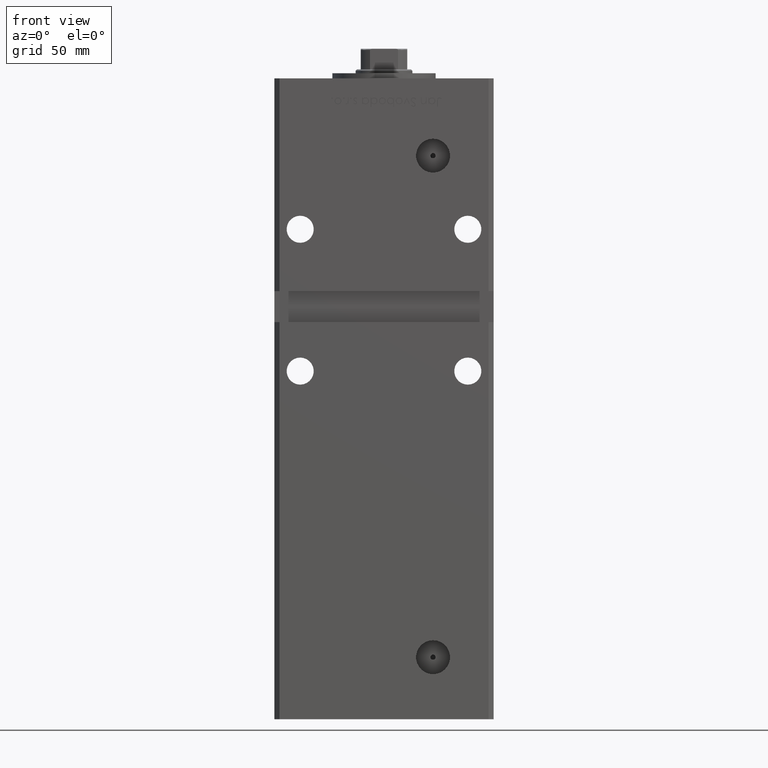
[diagram: clean part render]
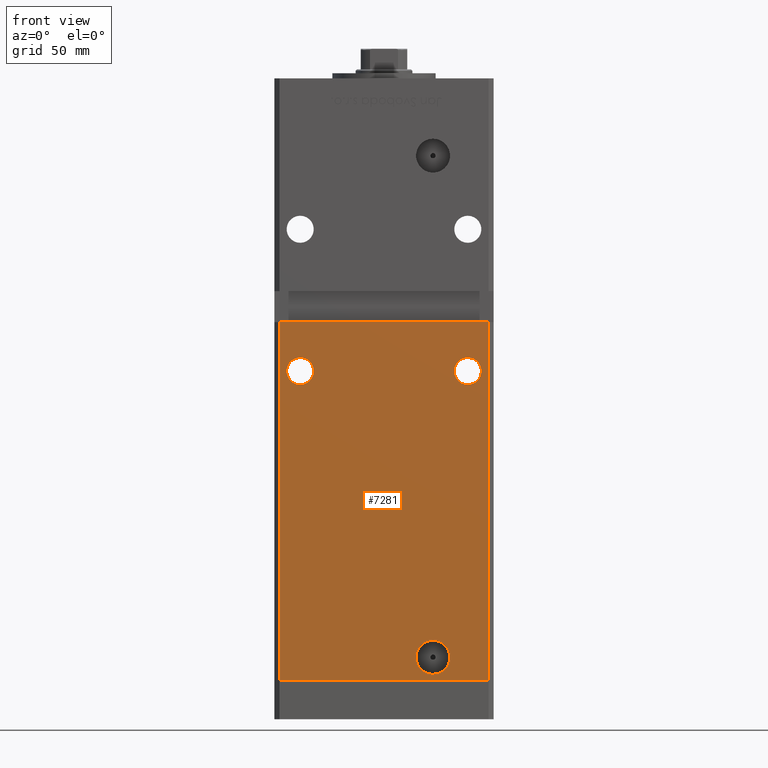
[diagram: same view with one face highlighted and labeled with its STEP entity id]
A machine part, front view. The second image highlights one B-rep face of the part: STEP entity #7281.
In plain terms, the highlighted planar face has unit normal (0, 1, 0).
Its self-contained STEP definition (entity closure, byte-faithful):
#118 = CIRCLE ( 'NONE', #1816, 5.250000000000004441 ) ;
#138 = DIRECTION ( 'NONE',  ( 0.000000000000000000, 1.000000000000000000, 0.000000000000000000 ) ) ;
#1005 = EDGE_CURVE ( 'NONE', #37546, #22924, #8713, .T. ) ;
#1575 = FACE_BOUND ( 'NONE', #26703, .T. ) ;
#1689 = CARTESIAN_POINT ( 'NONE',  ( 32.50000000000000000, -37.50000000000000711, 120.0000000000000284 ) ) ;
#1816 = AXIS2_PLACEMENT_3D ( 'NONE', #51570, #39739, #47282 ) ;
#2638 = EDGE_CURVE ( 'NONE', #22547, #33674, #30963, .T. ) ;
#2845 = ORIENTED_EDGE ( 'NONE', *, *, #41509, .T. ) ;
#4046 = EDGE_LOOP ( 'NONE', ( #31133, #35742, #12644, #27502 ) ) ;
#4178 = CARTESIAN_POINT ( 'NONE',  ( -32.50000000000000000, -37.50000000000000711, 120.0000000000000284 ) ) ;
#4843 = EDGE_CURVE ( 'NONE', #37546, #15901, #38566, .T. ) ;
#5079 = DIRECTION ( 'NONE',  ( 0.000000000000000000, 1.000000000000000000, 0.000000000000000000 ) ) ;
#6186 = CIRCLE ( 'NONE', #8765, 5.250000000000004441 ) ;
#7281 = ADVANCED_FACE ( 'NONE', ( #38442, #1575, #17217, #38182 ), #29829, .F. ) ;
#7476 = CARTESIAN_POINT ( 'NONE',  ( 32.50000000000000000, -37.50000000000000711, 114.7500000000000284 ) ) ;
#7487 = VERTEX_POINT ( 'NONE', #11504 ) ;
#7650 = CIRCLE ( 'NONE', #15373, 5.250000000000004441 ) ;
#8713 = LINE ( 'NONE', #20043, #42049 ) ;
#8739 = CARTESIAN_POINT ( 'NONE',  ( 40.49999999999998579, -37.50000000000000711, 139.0000000000000284 ) ) ;
#8765 = AXIS2_PLACEMENT_3D ( 'NONE', #46626, #50921, #38299 ) ;
#10312 = CARTESIAN_POINT ( 'NONE',  ( -42.49999999999998579, -37.50000000000000711, 139.0000000000000284 ) ) ;
#10641 = AXIS2_PLACEMENT_3D ( 'NONE', #4178, #138, #49362 ) ;
#11453 = LINE ( 'NONE', #27856, #20465 ) ;
#11483 = CIRCLE ( 'NONE', #10641, 5.250000000000004441 ) ;
#11504 = CARTESIAN_POINT ( 'NONE',  ( 32.50000000000000000, -37.50000000000000711, 125.2500000000000284 ) ) ;
#12286 = ORIENTED_EDGE ( 'NONE', *, *, #47349, .T. ) ;
#12462 = EDGE_CURVE ( 'NONE', #44953, #32972, #11483, .T. ) ;
#12644 = ORIENTED_EDGE ( 'NONE', *, *, #1005, .T. ) ;
#13535 = DIRECTION ( 'NONE',  ( 0.000000000000000000, 0.000000000000000000, 1.000000000000000000 ) ) ;
#14713 = VECTOR ( 'NONE', #39348, 1000.000000000000000 ) ;
#15373 = AXIS2_PLACEMENT_3D ( 'NONE', #1689, #31010, #13535 ) ;
#15611 = CARTESIAN_POINT ( 'NONE',  ( 18.99999999999998934, -37.50000000000000711, 2.420000000000009699 ) ) ;
#15901 = VERTEX_POINT ( 'NONE', #8739 ) ;
#16001 = DIRECTION ( 'NONE',  ( -0.000000000000000000, -0.000000000000000000, -1.000000000000000000 ) ) ;
#16102 = CARTESIAN_POINT ( 'NONE',  ( -32.50000000000000000, -37.50000000000000711, 114.7500000000000142 ) ) ;
#17217 = FACE_BOUND ( 'NONE', #51950, .T. ) ;
#17546 = ORIENTED_EDGE ( 'NONE', *, *, #46370, .F. ) ;
#18285 = DIRECTION ( 'NONE',  ( 0.000000000000000000, -0.000000000000000000, 1.000000000000000000 ) ) ;
#18552 = CARTESIAN_POINT ( 'NONE',  ( 18.99999999999998934, -37.50000000000000711, 9.000000000000007105 ) ) ;
#20043 = CARTESIAN_POINT ( 'NONE',  ( -40.49999999999998579, -37.50000000000000711, 218.5000000000000000 ) ) ;
#20465 = VECTOR ( 'NONE', #40231, 1000.000000000000000 ) ;
#21976 = CARTESIAN_POINT ( 'NONE',  ( -40.49999999999998579, -37.50000000000000711, 0.000000000000000000 ) ) ;
#22135 = CARTESIAN_POINT ( 'NONE',  ( 18.99999999999998934, -37.50000000000000711, 15.58000000000000718 ) ) ;
#22224 = CARTESIAN_POINT ( 'NONE',  ( -40.49999999999998579, -37.50000000000000711, 0.000000000000000000 ) ) ;
#22410 = AXIS2_PLACEMENT_3D ( 'NONE', #18552, #26077, #43013 ) ;
#22547 = VERTEX_POINT ( 'NONE', #15611 ) ;
#22924 = VERTEX_POINT ( 'NONE', #22224 ) ;
#26077 = DIRECTION ( 'NONE',  ( 0.000000000000000000, -1.000000000000000000, 0.000000000000000000 ) ) ;
#26703 = EDGE_LOOP ( 'NONE', ( #12286, #41645 ) ) ;
#27502 = ORIENTED_EDGE ( 'NONE', *, *, #31554, .T. ) ;
#27657 = AXIS2_PLACEMENT_3D ( 'NONE', #34412, #5079, #18285 ) ;
#27856 = CARTESIAN_POINT ( 'NONE',  ( 40.49999999999998579, -37.50000000000000711, 218.5000000000000000 ) ) ;
#28164 = CARTESIAN_POINT ( 'NONE',  ( 18.99999999999998934, -37.50000000000000711, 9.000000000000007105 ) ) ;
#29075 = CARTESIAN_POINT ( 'NONE',  ( -32.50000000000000000, -37.50000000000000711, 125.2500000000000284 ) ) ;
#29829 = PLANE ( 'NONE',  #27657 ) ;
#29844 = ORIENTED_EDGE ( 'NONE', *, *, #2638, .F. ) ;
#30356 = CIRCLE ( 'NONE', #32929, 6.579999999999998295 ) ;
#30963 = CIRCLE ( 'NONE', #22410, 6.579999999999998295 ) ;
#31010 = DIRECTION ( 'NONE',  ( 0.000000000000000000, 1.000000000000000000, 0.000000000000000000 ) ) ;
#31084 = EDGE_LOOP ( 'NONE', ( #41158, #2845 ) ) ;
#31133 = ORIENTED_EDGE ( 'NONE', *, *, #32432, .F. ) ;
#31554 = EDGE_CURVE ( 'NONE', #22924, #43237, #42415, .T. ) ;
#32432 = EDGE_CURVE ( 'NONE', #15901, #43237, #11453, .T. ) ;
#32744 = DIRECTION ( 'NONE',  ( 0.000000000000000000, -1.000000000000000000, 0.000000000000000000 ) ) ;
#32929 = AXIS2_PLACEMENT_3D ( 'NONE', #28164, #32744, #49661 ) ;
#32972 = VERTEX_POINT ( 'NONE', #16102 ) ;
#33109 = VERTEX_POINT ( 'NONE', #7476 ) ;
#33674 = VERTEX_POINT ( 'NONE', #22135 ) ;
#34412 = CARTESIAN_POINT ( 'NONE',  ( -40.49999999999998579, -37.50000000000000711, 218.5000000000000000 ) ) ;
#34567 = EDGE_CURVE ( 'NONE', #33109, #7487, #7650, .T. ) ;
#35742 = ORIENTED_EDGE ( 'NONE', *, *, #4843, .F. ) ;
#37546 = VERTEX_POINT ( 'NONE', #42703 ) ;
#38182 = FACE_OUTER_BOUND ( 'NONE', #4046, .T. ) ;
#38299 = DIRECTION ( 'NONE',  ( 0.000000000000000000, 0.000000000000000000, 1.000000000000000000 ) ) ;
#38384 = DIRECTION ( 'NONE',  ( 1.000000000000000000, 0.000000000000000000, 0.000000000000000000 ) ) ;
#38442 = FACE_BOUND ( 'NONE', #31084, .T. ) ;
#38566 = LINE ( 'NONE', #10312, #14713 ) ;
#39348 = DIRECTION ( 'NONE',  ( 1.000000000000000000, 0.000000000000000000, 0.000000000000000000 ) ) ;
#39739 = DIRECTION ( 'NONE',  ( 0.000000000000000000, 1.000000000000000000, 0.000000000000000000 ) ) ;
#40231 = DIRECTION ( 'NONE',  ( -0.000000000000000000, -0.000000000000000000, -1.000000000000000000 ) ) ;
#41158 = ORIENTED_EDGE ( 'NONE', *, *, #12462, .T. ) ;
#41509 = EDGE_CURVE ( 'NONE', #32972, #44953, #118, .T. ) ;
#41645 = ORIENTED_EDGE ( 'NONE', *, *, #34567, .T. ) ;
#41939 = VECTOR ( 'NONE', #38384, 1000.000000000000000 ) ;
#42049 = VECTOR ( 'NONE', #16001, 1000.000000000000000 ) ;
#42415 = LINE ( 'NONE', #21976, #41939 ) ;
#42703 = CARTESIAN_POINT ( 'NONE',  ( -40.49999999999998579, -37.50000000000000711, 139.0000000000000284 ) ) ;
#43013 = DIRECTION ( 'NONE',  ( 0.000000000000000000, 0.000000000000000000, -1.000000000000000000 ) ) ;
#43237 = VERTEX_POINT ( 'NONE', #49789 ) ;
#44953 = VERTEX_POINT ( 'NONE', #29075 ) ;
#46370 = EDGE_CURVE ( 'NONE', #33674, #22547, #30356, .T. ) ;
#46626 = CARTESIAN_POINT ( 'NONE',  ( 32.50000000000000000, -37.50000000000000711, 120.0000000000000284 ) ) ;
#47282 = DIRECTION ( 'NONE',  ( 0.000000000000000000, 0.000000000000000000, 1.000000000000000000 ) ) ;
#47349 = EDGE_CURVE ( 'NONE', #7487, #33109, #6186, .T. ) ;
#49362 = DIRECTION ( 'NONE',  ( 0.000000000000000000, 0.000000000000000000, 1.000000000000000000 ) ) ;
#49661 = DIRECTION ( 'NONE',  ( 0.000000000000000000, 0.000000000000000000, -1.000000000000000000 ) ) ;
#49789 = CARTESIAN_POINT ( 'NONE',  ( 40.49999999999998579, -37.50000000000000711, 0.000000000000000000 ) ) ;
#50921 = DIRECTION ( 'NONE',  ( 0.000000000000000000, 1.000000000000000000, 0.000000000000000000 ) ) ;
#51570 = CARTESIAN_POINT ( 'NONE',  ( -32.50000000000000000, -37.50000000000000711, 120.0000000000000284 ) ) ;
#51950 = EDGE_LOOP ( 'NONE', ( #29844, #17546 ) ) ;